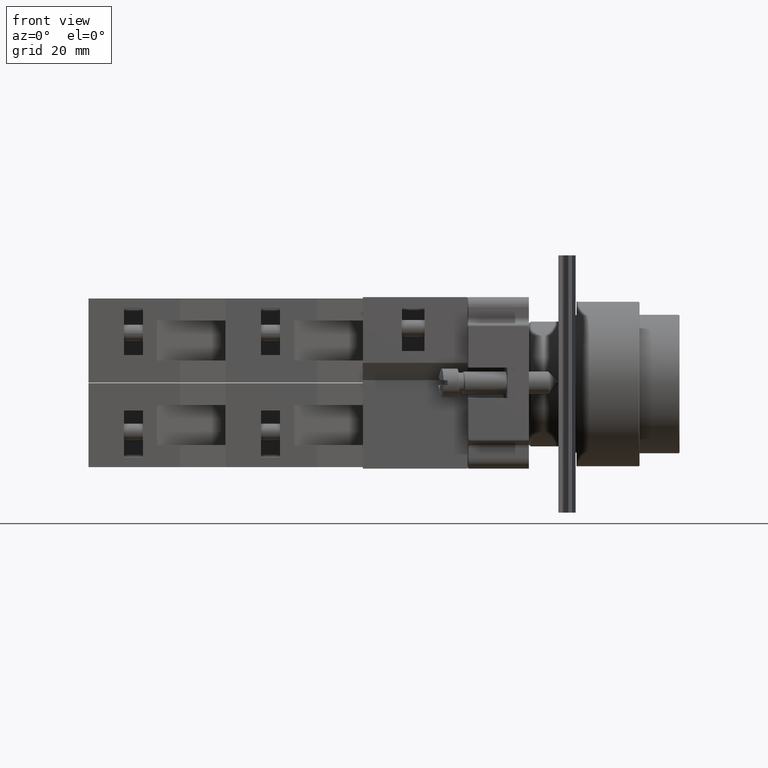
[diagram: clean part render]
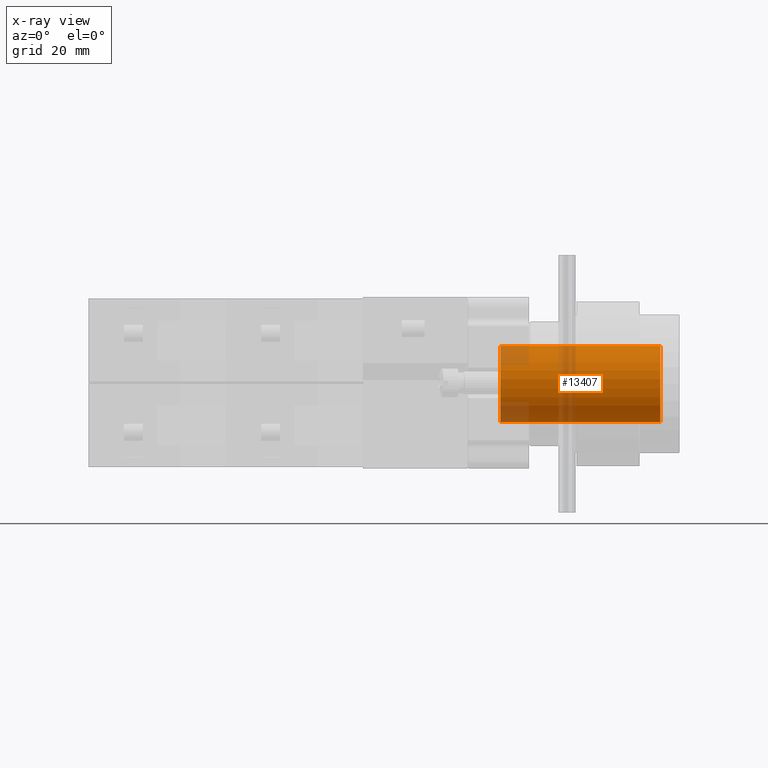
[diagram: x-ray — body ghosted, one internal face saturated and labeled with its STEP entity id]
A machine part, front view, then the same camera in x-ray: the body is ghosted and one INTERNAL B-rep face — a face not visible from any outside direction — is saturated and labeled: STEP entity #13407.
In plain terms, the highlighted cylindrical surface (bore or boss wall) has radius 6.65 mm, axis along (1, -0, 0).
Its self-contained STEP definition (entity closure, byte-faithful):
#13380=CARTESIAN_POINT('',(-12.120895354876740,-0.031685679495355,0.0));
#13381=DIRECTION('',(1.0,9.881728E-017,0.0));
#13382=DIRECTION('',(0.0,0.0,-1.0));
#13383=AXIS2_PLACEMENT_3D('',#13380,#13381,#13382);
#13384=CYLINDRICAL_SURFACE('',#13383,6.650000000000000);
#13385=CARTESIAN_POINT('',(15.879104645123263,-0.031685679495352,6.650000000000000));
#13386=VERTEX_POINT('',#13385);
#13387=CARTESIAN_POINT('',(15.879104645123263,-0.031685679495353,0.0));
#13388=DIRECTION('',(-1.0,0.0,0.0));
#13389=DIRECTION('',(0.0,0.0,-1.0));
#13390=AXIS2_PLACEMENT_3D('',#13387,#13388,#13389);
#13391=CIRCLE('',#13390,6.650000000000000);
#13392=EDGE_CURVE('',#13386,#13386,#13391,.T.);
#13393=ORIENTED_EDGE('',*,*,#13392,.F.);
#13394=EDGE_LOOP('',(#13393));
#13395=FACE_OUTER_BOUND('',#13394,.T.);
#13396=CARTESIAN_POINT('',(-12.120895354876740,-0.031685679495355,6.650000000000000));
#13397=VERTEX_POINT('',#13396);
#13398=CARTESIAN_POINT('',(-12.120895354876740,-0.031685679495355,0.0));
#13399=DIRECTION('',(1.0,0.0,0.0));
#13400=DIRECTION('',(0.0,0.0,-1.0));
#13401=AXIS2_PLACEMENT_3D('',#13398,#13399,#13400);
#13402=CIRCLE('',#13401,6.650000000000000);
#13403=EDGE_CURVE('',#13397,#13397,#13402,.T.);
#13404=ORIENTED_EDGE('',*,*,#13403,.F.);
#13405=EDGE_LOOP('',(#13404));
#13406=FACE_BOUND('',#13405,.T.);
#13407=ADVANCED_FACE('',(#13395,#13406),#13384,.F.);